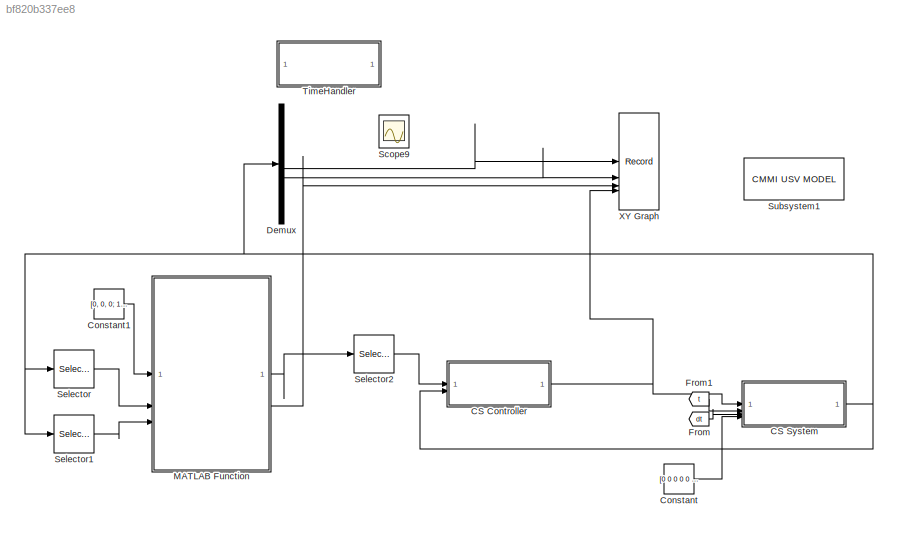
MODEL slx_bf820b337ee8
KIND model
CONFIG AbsTol = auto
CONFIG EnableMultiTasking = off
CONFIG FixedStep = 0.05
CONFIG MaxStep = auto
CONFIG MinStep = auto
CONFIG RelTol = 1e-3
CONFIG SampleTimeConstraint = Unconstrained
CONFIG SolverName = FixedStepAuto
CONFIG StartTime = 0.0
CONFIG StopTime = 130
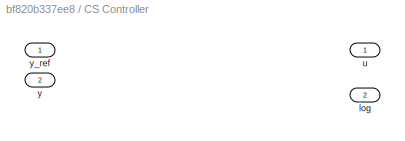
BLOCK [SubSystem] CS Controller
  Tag = __cs_template;__cs_comptype:ctl
BLOCK [Outport] CS Controller/log
  Port = 2
BLOCK [Outport] CS Controller/u
BLOCK [Inport] CS Controller/y
  Port = 2
BLOCK [Inport] CS Controller/y_ref
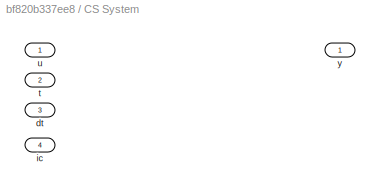
BLOCK [SubSystem] CS System
  Tag = __cs_template;__cs_comptype:sys
BLOCK [Inport] CS System/dt
  Port = 3
BLOCK [Inport] CS System/ic
  Port = 4
BLOCK [Inport] CS System/t
  Port = 2
BLOCK [Inport] CS System/u
BLOCK [Outport] CS System/y
BLOCK [Constant] Constant
  Value = [0 0 0 0 0 0 0 0 0 0 0 0]'
BLOCK [Constant] Constant1
  Value = [0, 0, 0; 10, 0, 0; 10 10, 0; 0, 10, 0; 0, 20, 0; 10, 20, 0; 10, 30, 0; 0, 30, 0]
BLOCK [Demux] Demux
  Outputs = 12
BLOCK [From] From
  GotoTag = dt
  TagVisibility = global
BLOCK [From] From1
  GotoTag = t
  TagVisibility = global
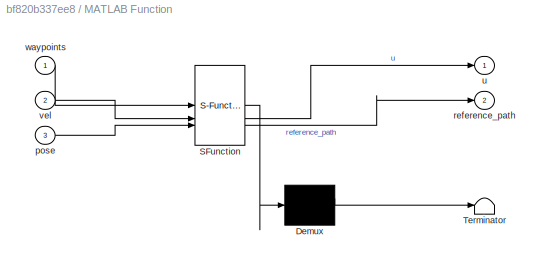
BLOCK [SubSystem] MATLAB Function
  ErrorFcn = Stateflow.Translate.translate
  PermitHierarchicalResolution = ExplicitOnly
  SFBlockType = MATLAB Function
  SystemSampleTime = 0.8
  TreatAsAtomicUnit = on
BLOCK [Demux] MATLAB Function/ Demux 
  Outputs = 1
BLOCK [S-Function] MATLAB Function/ SFunction 
  EnableBusSupport = on
  FunctionName = sf_sfun
  Parameters = params
  PortCounts = [3 3]
  SFcnIsStateOwnerBlock = off
  SFunctionDeploymentMode = off
  Tag = Stateflow S-Function 2
BLOCK [Terminator] MATLAB Function/ Terminator 
BLOCK [Inport] MATLAB Function/pose
  Port = 3
BLOCK [Outport] MATLAB Function/reference_path
  Port = 2
BLOCK [Outport] MATLAB Function/u
BLOCK [Inport] MATLAB Function/vel
  Port = 2
BLOCK [Inport] MATLAB Function/waypoints
BLOCK [Scope] Scope9
  Floating = off
  NumInputPorts = 2
  ScopeSpecificationString = Simulink.scopes.TimeScopeBlockCfg('CurrentConfiguration', extmgr.ConfigurationSet(extmgr.Configuration('Core','General UI',true),extmgr.Configuration('Core','Source UI',true),extmgr.Configuration('Sources','WiredSimulink',true,'DataLoggingVariableName','ScopeData3'),extmgr.Configuration('Visuals','Time Domain',true,'SerializedDisplays',{struct('MinYLimReal','-1.00000','MaxYLimReal','1.00000','YLab...<+1768ch>
BLOCK [Selector] Selector
  IndexOptions = Index vector (dialog)
  Indices = [1 2 6]
  InputPortWidth = 12
  OutputSizes = 1
BLOCK [Selector] Selector1
  IndexOptions = Index vector (dialog)
  Indices = [7 8 12]
  InputPortWidth = 12
  OutputSizes = 1
BLOCK [Selector] Selector2
  IndexOptions = Index vector (dialog),Select all
  Indices = 1,1
  InputPortWidth = 12
  NumberOfDimensions = 2
  OutputSizes = 1,1
BLOCK [Reference] Subsystem1  REF=cmmi_lib/CMMI USV MODEL  (lib defined in slx_36746e0085bf)
  Commented = on
  SourceBlock = cmmi_lib/CMMI USV MODEL
  SourceType = SubSystem
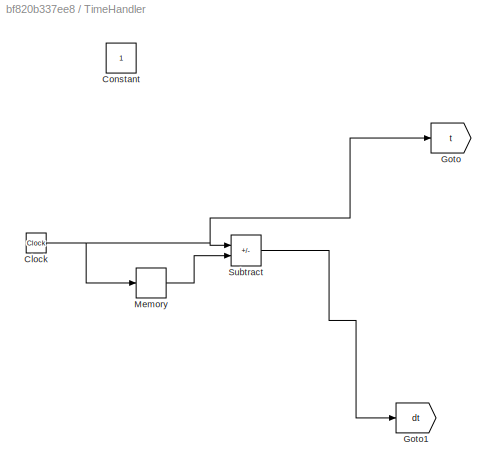
BLOCK [SubSystem] TimeHandler
BLOCK [Clock] TimeHandler/Clock
BLOCK [Constant] TimeHandler/Constant
BLOCK [Goto] TimeHandler/Goto
  GotoTag = t
  TagVisibility = global
BLOCK [Goto] TimeHandler/Goto1
  GotoTag = dt
  TagVisibility = global
BLOCK [Memory] TimeHandler/Memory
BLOCK [Sum] TimeHandler/Subtract
  IconShape = rectangular
  Inputs = +-
BLOCK [Record] XY Graph
  CompatibilityTag = XY
  FileSettingsInternal = {"entries":[{"content":{"excelSettings":{"content":{},"type":"Streamout.ExcelSettings"}},"type":"Streamout.FileSettingStorage","uuid":""}],"packageUris":["http:\/\/schema.mathworks.com\/mf0\/streamout_blocks\/R2020a"],"version":"1.0"}
  Layout = [1 1]
  SignalsInternal = {"entries":[{"content":{"signals":[{"content":{"blockPath":[],"dimensions":[2],"domain":"","hasChildren":true,"lineColor":"#fe330a","lineWidth":2,"port":1,"signalID":1,"signalName":"Demux:4"},"type":"RecordBlkView.Signal","uuid":""},{"content":{"blockPath":[],"channel":[1],"dimensions":[2],"domain":"","lineColor":"#22b573","lineWidth":2,"parentID":1,"port":1,"signalID":2,"signalName":"Demux:4"},"t...<+1000ch>
  VisualizationBindings = {"xyplotplugin":{"info":[{"series":[],"subplotID":1}]}}
NET CS Controller:1 -> CS System:1, XY Graph:4
NET CS System:1 -> CS Controller:2, Demux:1, Selector1:1, Selector:1
LINE Constant1:1 -> MATLAB Function:1
LINE Constant:1 -> CS System:4
LINE Demux:7 -> XY Graph:1
LINE Demux:8 -> XY Graph:2
LINE From1:1 -> CS System:2
LINE From:1 -> CS System:3
LINE MATLAB Function:1 -> Selector2:1
LINE MATLAB Function:2 -> XY Graph:3
LINE Selector1:1 -> MATLAB Function:3
LINE Selector2:1 -> CS Controller:1
LINE Selector:1 -> MATLAB Function:2
NET TimeHandler/Clock:1 -> TimeHandler/Goto:1, TimeHandler/Memory:1, TimeHandler/Subtract:1
LINE TimeHandler/Memory:1 -> TimeHandler/Subtract:2
LINE TimeHandler/Subtract:1 -> TimeHandler/Goto1:1
note: NET lines group one-source signal fan-out (src -> all destinations, sorted); 1:1 wires keep LINE
CHART MATLAB Function states=1 transitions=1
  STATE_LABEL 'eML_blk_kernel()'
  STATE_LABEL 'SCRIPT:\nfunction [u, reference_path] = fcn(waypoints, vel, pose, params)\n\n    persistent global_path idx initial_global_path\n    use_waypoints = 1;\n    num_divs = 100;        \n    if isempty(global_path)\n\n        if use_waypoints\n            global_path = zeros((height(waypoints)-1) * num_divs+1, 3);\n            global_path(1, :) = waypoints(1, :);\n            for i=1:length(waypoints)-1\n         ...<+1054ch>'
CHART  states=0 transitions=0
